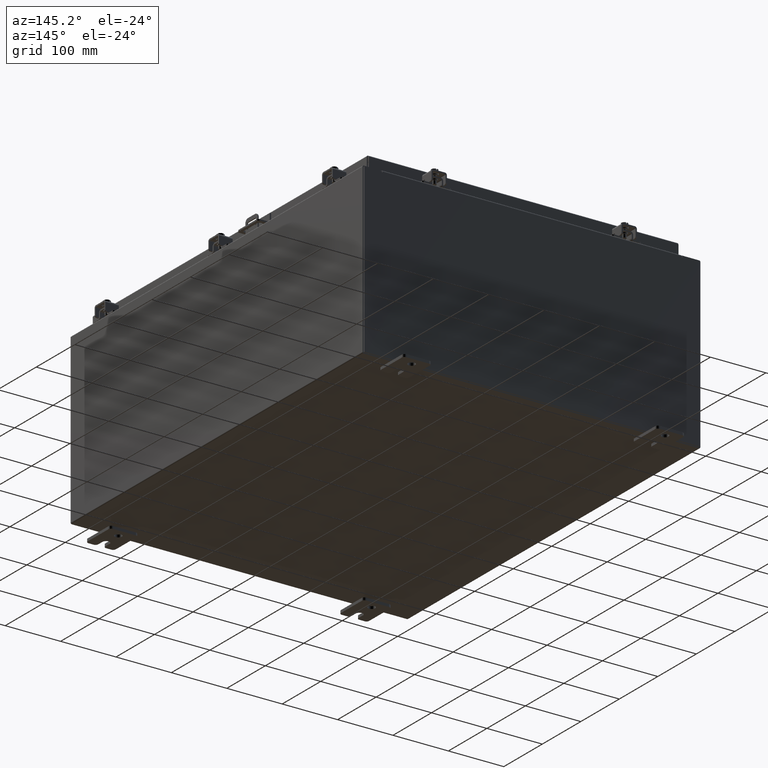
[diagram: clean part render]
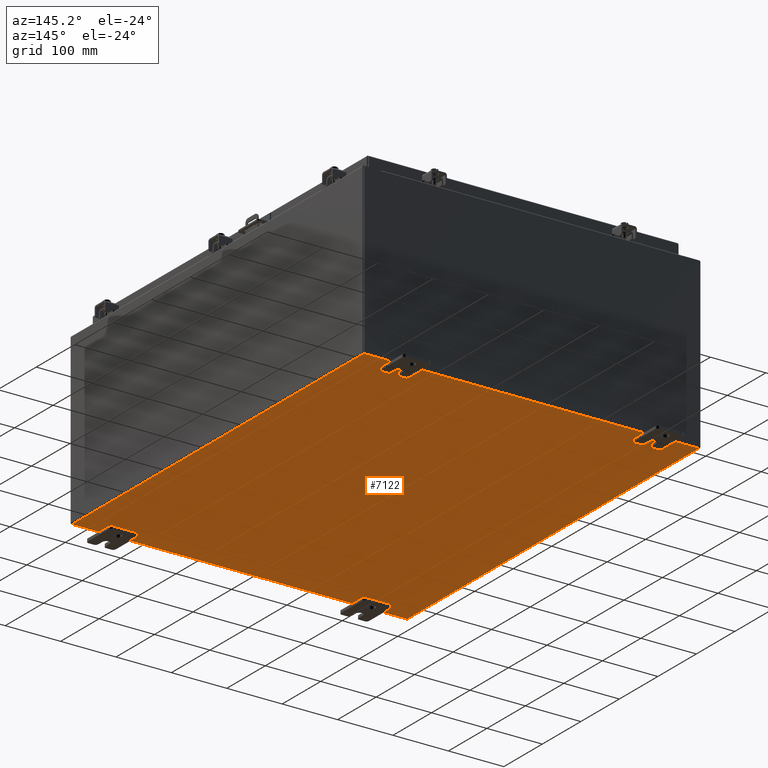
[diagram: same view with one face highlighted and labeled with its STEP entity id]
A machine part, auxiliary view. The second image highlights one B-rep face of the part: STEP entity #7122.
In plain terms, the highlighted planar face has unit normal (0, 0, -1).
Its self-contained STEP definition (entity closure, byte-faithful):
#2031 = CARTESIAN_POINT ( 'NONE',  ( 11.91229999999999700, 14.92530000000000000, -0.07470000000000226500 ) ) ;
#2627 = ORIENTED_EDGE ( 'NONE', *, *, #36727, .T. ) ;
#2968 = ORIENTED_EDGE ( 'NONE', *, *, #26726, .F. ) ;
#3023 = CARTESIAN_POINT ( 'NONE',  ( -11.91230000000000500, -14.92530000000000000, -0.07469999999999994700 ) ) ;
#3865 = VECTOR ( 'NONE', #23264, 39.37007874015748100 ) ;
#5363 = VECTOR ( 'NONE', #18427, 39.37007874015748100 ) ;
#6746 = DIRECTION ( 'NONE',  ( 1.000000000000000000, 0.0000000000000000000, 0.0000000000000000000 ) ) ;
#7122 = ADVANCED_FACE ( 'NONE', ( #24421 ), #9600, .T. ) ;
#7300 = ORIENTED_EDGE ( 'NONE', *, *, #21382, .T. ) ;
#9284 = VERTEX_POINT ( 'NONE', #28716 ) ;
#9600 = PLANE ( 'NONE',  #25542 ) ;
#11594 = CARTESIAN_POINT ( 'NONE',  ( -11.91230000000000500, 14.92530000000000000, -0.07470000000000000300 ) ) ;
#12587 = CARTESIAN_POINT ( 'NONE',  ( -12.00000000000000500, -14.92530000000000000, -0.07470000000000000300 ) ) ;
#12702 = CARTESIAN_POINT ( 'NONE',  ( 0.0000000000000000000, 0.0000000000000000000, -0.07470000000000000300 ) ) ;
#12818 = DIRECTION ( 'NONE',  ( -1.000000000000000000, 0.0000000000000000000, -0.0000000000000000000 ) ) ;
#13089 = LINE ( 'NONE', #29954, #5363 ) ;
#13176 = DIRECTION ( 'NONE',  ( 0.0000000000000000000, 0.0000000000000000000, -1.000000000000000000 ) ) ;
#13183 = VERTEX_POINT ( 'NONE', #24067 ) ;
#13450 = VERTEX_POINT ( 'NONE', #16769 ) ;
#16455 = DIRECTION ( 'NONE',  ( -0.0000000000000000000, -1.000000000000000000, 8.208677865577646300E-017 ) ) ;
#16769 = CARTESIAN_POINT ( 'NONE',  ( 11.91229999999999700, 14.92530000000000000, -0.07470000000000226500 ) ) ;
#18199 = LINE ( 'NONE', #12587, #24072 ) ;
#18427 = DIRECTION ( 'NONE',  ( -1.000000000000000000, -0.0000000000000000000, -0.0000000000000000000 ) ) ;
#21382 = EDGE_CURVE ( 'NONE', #13183, #35312, #21947, .T. ) ;
#21947 = LINE ( 'NONE', #3023, #3865 ) ;
#22452 = ORIENTED_EDGE ( 'NONE', *, *, #25357, .F. ) ;
#23264 = DIRECTION ( 'NONE',  ( -0.0000000000000000000, 1.000000000000000000, -0.0000000000000000000 ) ) ;
#24067 = CARTESIAN_POINT ( 'NONE',  ( -11.91230000000000500, -14.92530000000000000, -0.07469999999999994700 ) ) ;
#24072 = VECTOR ( 'NONE', #6746, 39.37007874015748100 ) ;
#24421 = FACE_OUTER_BOUND ( 'NONE', #31389, .T. ) ;
#25357 = EDGE_CURVE ( 'NONE', #13183, #9284, #18199, .T. ) ;
#25542 = AXIS2_PLACEMENT_3D ( 'NONE', #12702, #13176, #12818 ) ;
#26726 = EDGE_CURVE ( 'NONE', #13450, #35312, #13089, .T. ) ;
#28187 = LINE ( 'NONE', #2031, #35029 ) ;
#28716 = CARTESIAN_POINT ( 'NONE',  ( 11.91229999999998800, -14.92530000000000000, -0.07470000000000000300 ) ) ;
#29954 = CARTESIAN_POINT ( 'NONE',  ( -12.00000000000000500, 14.92530000000000000, -0.07470000000000000300 ) ) ;
#31389 = EDGE_LOOP ( 'NONE', ( #22452, #7300, #2968, #2627 ) ) ;
#35029 = VECTOR ( 'NONE', #16455, 39.37007874015748100 ) ;
#35312 = VERTEX_POINT ( 'NONE', #11594 ) ;
#36727 = EDGE_CURVE ( 'NONE', #13450, #9284, #28187, .T. ) ;